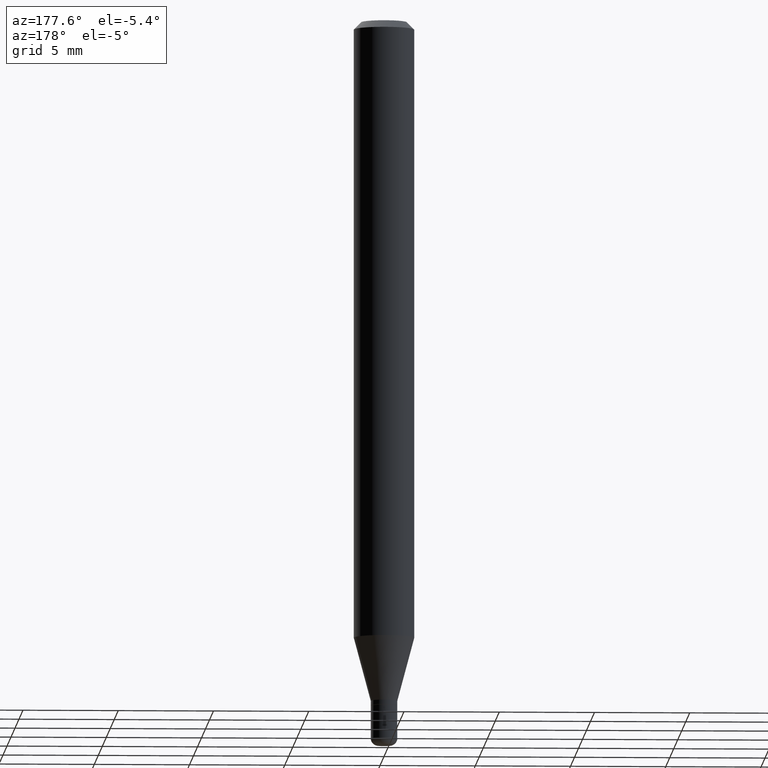
[diagram: clean part render]
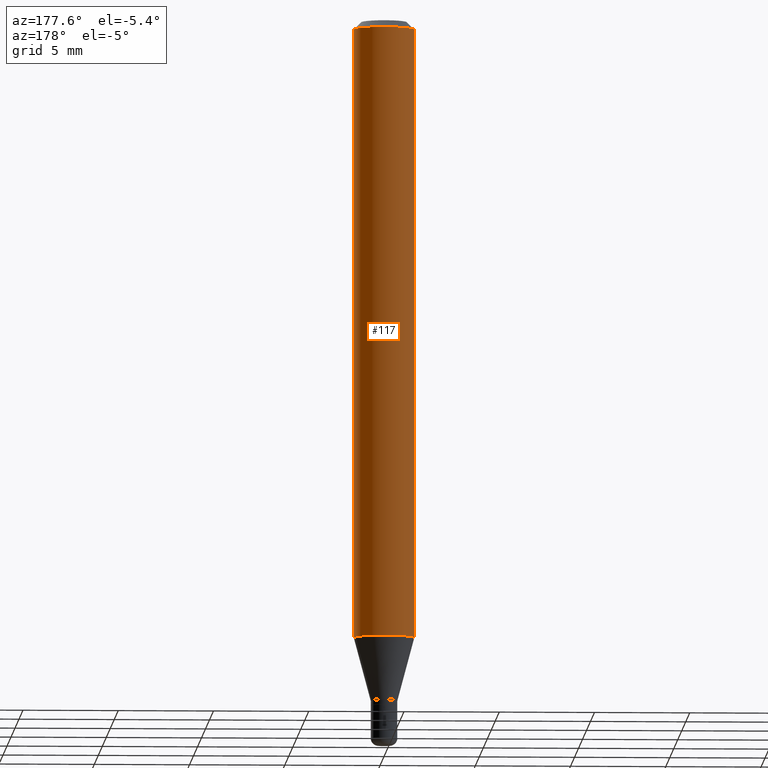
[diagram: same view with one face highlighted and labeled with its STEP entity id]
A machine part, auxiliary view. The second image highlights one B-rep face of the part: STEP entity #117.
In plain terms, the highlighted cylindrical surface (edge-blend (fillet) strip) has radius 1.5875 mm, axis along (-0, 0, 1).
Its self-contained STEP definition (entity closure, byte-faithful):
#4 = FACE_OUTER_BOUND ( 'NONE', #291, .T. ) ;
#31 = DIRECTION ( 'NONE',  ( 1.000000000000000000, -6.982962677686262766E-15, 0.000000000000000000 ) ) ;
#52 = CIRCLE ( 'NONE', #138, 0.06250000000000000000 ) ;
#56 = ORIENTED_EDGE ( 'NONE', *, *, #284, .F. ) ;
#88 = DIRECTION ( 'NONE',  ( -2.445468806185136597E-29, 3.491481338843145583E-15, 1.000000000000000000 ) ) ;
#98 = AXIS2_PLACEMENT_3D ( 'NONE', #266, #357, #313 ) ;
#102 = VERTEX_POINT ( 'NONE', #375 ) ;
#112 = DIRECTION ( 'NONE',  ( -2.445468806185136597E-29, 3.491481338843145583E-15, 1.000000000000000000 ) ) ;
#117 = ADVANCED_FACE ( 'NONE', ( #4 ), #412, .T. ) ;
#136 = CARTESIAN_POINT ( 'NONE',  ( 0.06250000000000000000, -4.888073874380378612E-16, -0.01499999999999970281 ) ) ;
#138 = AXIS2_PLACEMENT_3D ( 'NONE', #228, #112, #31 ) ;
#145 = CARTESIAN_POINT ( 'NONE',  ( 0.06250000000000000000, -4.364351673553916694E-16, 3.047610484872459871E-30 ) ) ;
#166 = DIRECTION ( 'NONE',  ( 1.000000000000000000, -6.982962677686266711E-15, 4.876176775795935793E-29 ) ) ;
#173 = VECTOR ( 'NONE', #423, 39.37007874015748143 ) ;
#181 = ORIENTED_EDGE ( 'NONE', *, *, #347, .F. ) ;
#186 = VECTOR ( 'NONE', #360, 39.37007874015748143 ) ;
#228 = CARTESIAN_POINT ( 'NONE',  ( 3.121343126147216904E-29, -4.456450742493864567E-15, -1.276378221735089635 ) ) ;
#240 = LINE ( 'NONE', #403, #186 ) ;
#244 = CARTESIAN_POINT ( 'NONE',  ( 0.000000000000000000, 0.000000000000000000, 0.000000000000000000 ) ) ;
#266 = CARTESIAN_POINT ( 'NONE',  ( 3.668203209277632395E-31, -5.237222008264614861E-17, -0.01499999999999970281 ) ) ;
#284 = EDGE_CURVE ( 'NONE', #102, #289, #339, .T. ) ;
#289 = VERTEX_POINT ( 'NONE', #136 ) ;
#291 = EDGE_LOOP ( 'NONE', ( #361, #469, #181, #56 ) ) ;
#313 = DIRECTION ( 'NONE',  ( 1.000000000000000000, -6.982962677686266711E-15, 0.000000000000000000 ) ) ;
#314 = AXIS2_PLACEMENT_3D ( 'NONE', #244, #88, #166 ) ;
#315 = CARTESIAN_POINT ( 'NONE',  ( -0.06250000000000000000, -1.810322271438192615E-15, -0.01499999999999970281 ) ) ;
#321 = CIRCLE ( 'NONE', #98, 0.06250000000000000000 ) ;
#329 = VERTEX_POINT ( 'NONE', #468 ) ;
#339 = LINE ( 'NONE', #145, #173 ) ;
#347 = EDGE_CURVE ( 'NONE', #289, #446, #321, .T. ) ;
#357 = DIRECTION ( 'NONE',  ( -2.445468806185136597E-29, 3.491481338843145583E-15, 1.000000000000000000 ) ) ;
#360 = DIRECTION ( 'NONE',  ( -2.445468806185136877E-29, 3.491481338843145188E-15, 1.000000000000000000 ) ) ;
#361 = ORIENTED_EDGE ( 'NONE', *, *, #390, .T. ) ;
#375 = CARTESIAN_POINT ( 'NONE',  ( 0.06250000000000000000, -4.892885909849255447E-15, -1.276378221735089635 ) ) ;
#390 = EDGE_CURVE ( 'NONE', #102, #329, #52, .T. ) ;
#403 = CARTESIAN_POINT ( 'NONE',  ( -0.06250000000000000000, 4.440892098500626162E-16, -3.074334431409316114E-30 ) ) ;
#412 = CYLINDRICAL_SURFACE ( 'NONE', #314, 0.06250000000000000000 ) ;
#423 = DIRECTION ( 'NONE',  ( -2.445468806185136877E-29, 3.491481338843145188E-15, 1.000000000000000000 ) ) ;
#446 = VERTEX_POINT ( 'NONE', #315 ) ;
#468 = CARTESIAN_POINT ( 'NONE',  ( -0.06250000000000000000, -4.012361532643800373E-15, -1.276378221735089635 ) ) ;
#469 = ORIENTED_EDGE ( 'NONE', *, *, #514, .T. ) ;
#514 = EDGE_CURVE ( 'NONE', #329, #446, #240, .T. ) ;